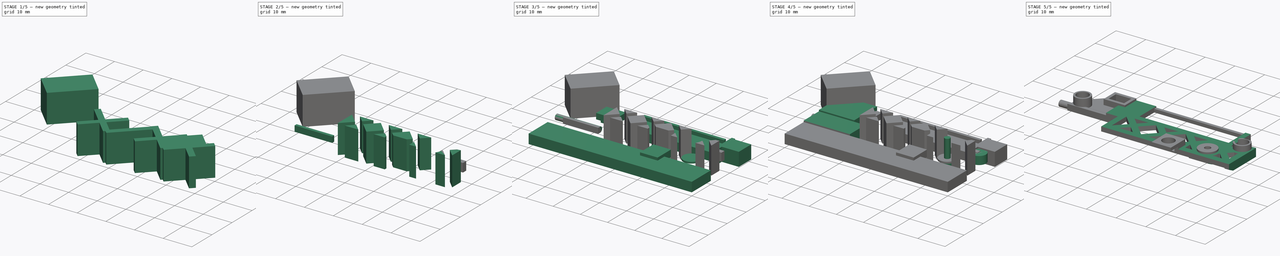
[diagram: build sequence overview — one tinted view per stage of 5, left to right]
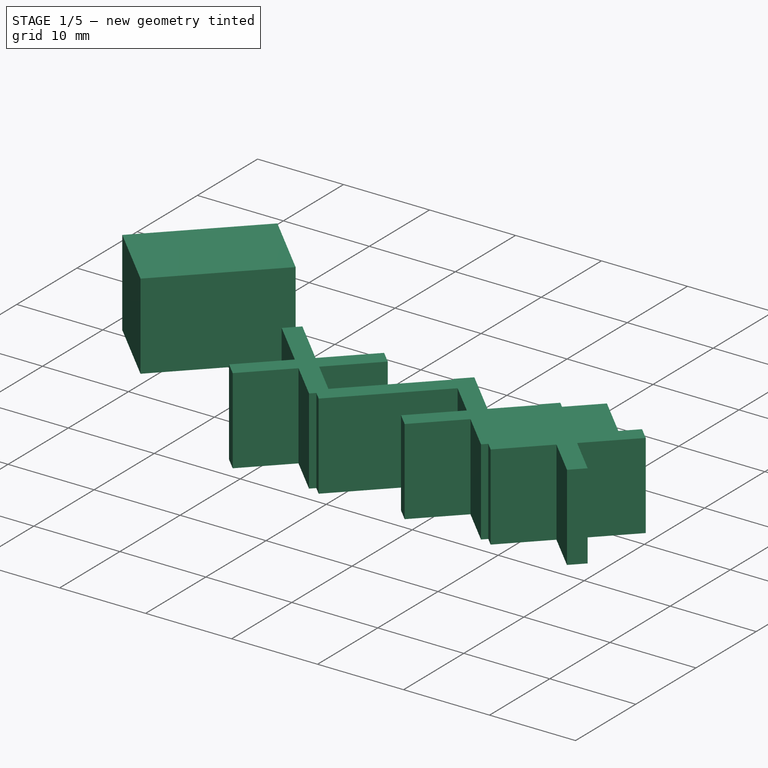
[diagram: stage 1 of 5 — iso view after this stage's code; geometry added in this stage tinted green]
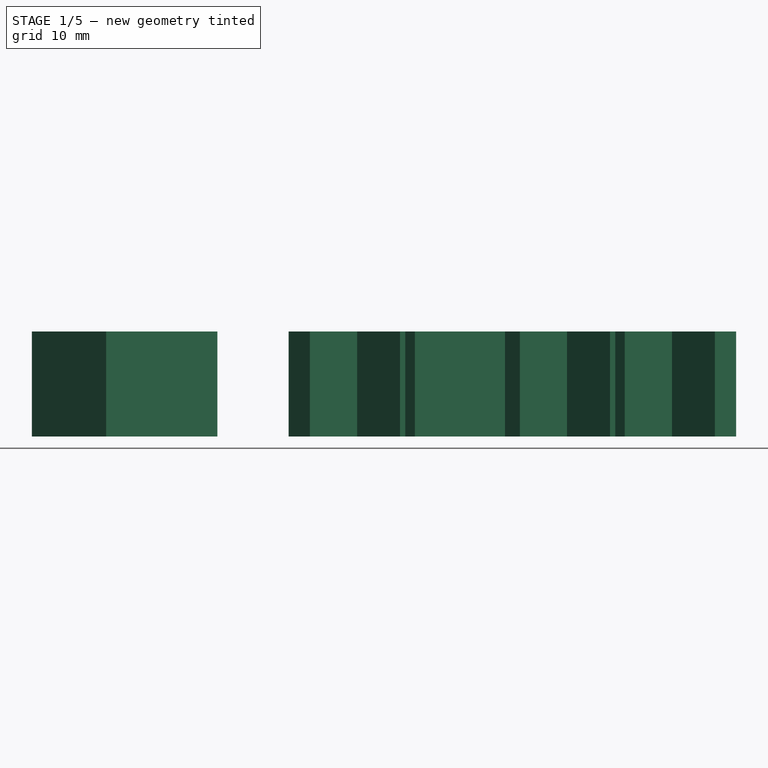
[diagram: stage 1 of 5 — front view after this stage's code; geometry added in this stage tinted green]
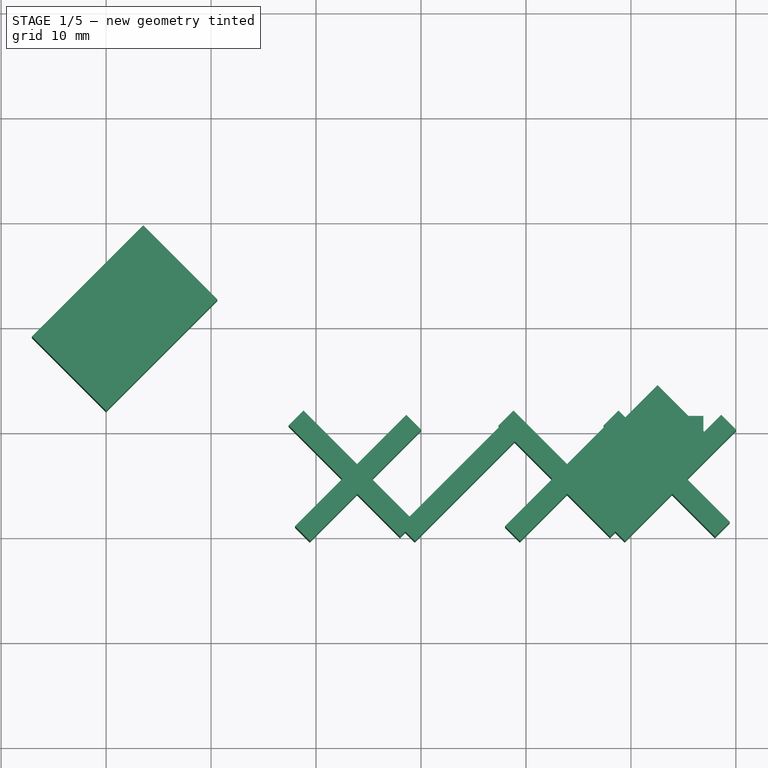
[diagram: stage 1 of 5 — top view after this stage's code; geometry added in this stage tinted green]
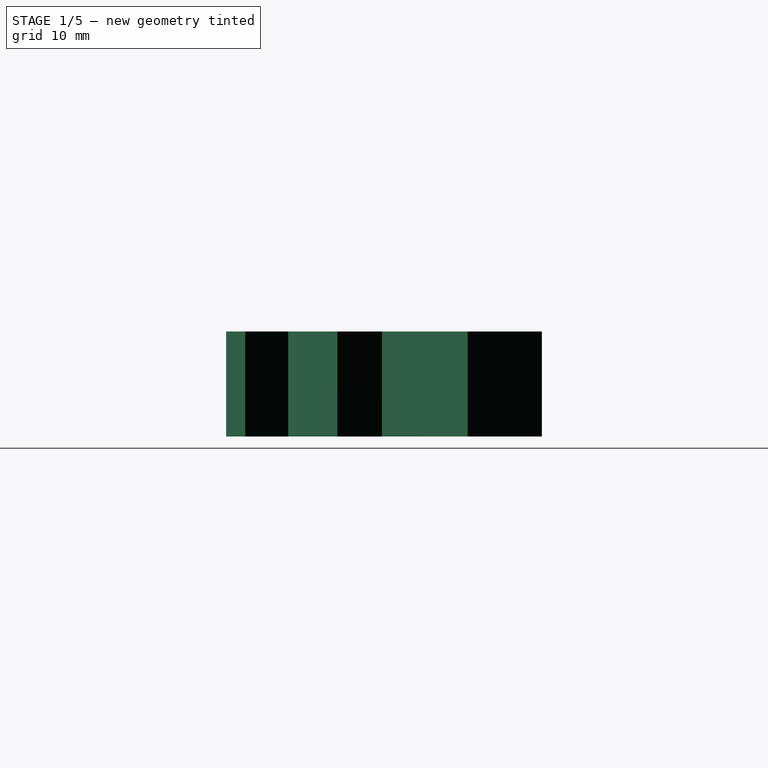
[diagram: stage 1 of 5 — right view after this stage's code; geometry added in this stage tinted green]
FCSTD DOCUMENT  (FreeCAD 0.17R13543 (Git))
Label: t25-t480-ports
License: All rights reserved
LicenseURL: http://en.wikipedia.org/wiki/All_rights_reserved
objects: Part::Box×29, Part::Cylinder×11, Part::MultiFuse×6, Part::Cut×4, Sketcher::SketchObject×1, PartDesign::Pad×1, PartDesign::Body×1
note: 54 computed .brp shape members not serialized (recipe doc carries the construction recipe); baked Part::Feature solids carry a one-line shape summary decoded from their .brp

FEATURE [Part::Box] Box017  label="Cube017"
  AttacherType = Attacher::AttachEngine3D
  Height = 10
  Length = 2
  Placement = pos=(28,0,0) rot=(0,0,1;0.785398rad)
  Width = 15
FEATURE [Part::Box] Box018  label="Cube018"
  AttacherType = Attacher::AttachEngine3D
  Height = 10
  Length = 2
  Placement = pos=(48,0,0) rot=(0,0,1;0.785398rad)
  Width = 15
FEATURE [Part::Box] Box019  label="Cube019"
  AttacherType = Attacher::AttachEngine3D
  Height = 10
  Length = 2
  Placement = pos=(38,1,0) rot=(0,0,-1;0.785398rad)
  Width = 15
FEATURE [Part::Box] Box020  label="Cube020"
  AttacherType = Attacher::AttachEngine3D
  Height = 10
  Length = 2
  Placement = pos=(28,1,0) rot=(0,0,-1;0.785398rad)
  Width = 15
FEATURE [Part::Box] Box021  label="Cube021"
  AttacherType = Attacher::AttachEngine3D
  Height = 10
  Length = 2
  Placement = pos=(18,1,0) rot=(0,0,-1;0.785398rad)
  Width = 15
FEATURE [Part::Box] Box024  label="Cube024"
  AttacherType = Attacher::AttachEngine3D
  Height = 10
  Length = 2
  Placement = pos=(48,1,0) rot=(0,0,-1;0.785398rad)
  Width = 15
FEATURE [Part::Box] Box025  label="Cube025"
  AttacherType = Attacher::AttachEngine3D
  Height = 10
  Length = 2
  Placement = pos=(58,0,0) rot=(0,0,1;0.785398rad)
  Width = 15
FEATURE [Part::Box] Box026  label="Cube026"
  AttacherType = Attacher::AttachEngine3D
  Height = 10
  Length = 12
  Placement = pos=(49,1,0) rot=(0,0,1;0.785398rad)
  Width = 7
FEATURE [Part::Box] Box027  label="Cube027"
  AttacherType = Attacher::AttachEngine3D
  Height = 10
  Length = 15
  Placement = pos=(0,12,0) rot=(0,0,1;0.785398rad)
  Width = 10
FEATURE [Part::Box] Box028  label="Cube028"
  AttacherType = Attacher::AttachEngine3D
  Height = 3
  Length = 3
  Placement = pos=(53.9,10,1.7) rot=(0,0,1;0rad)
  Width = 1.6
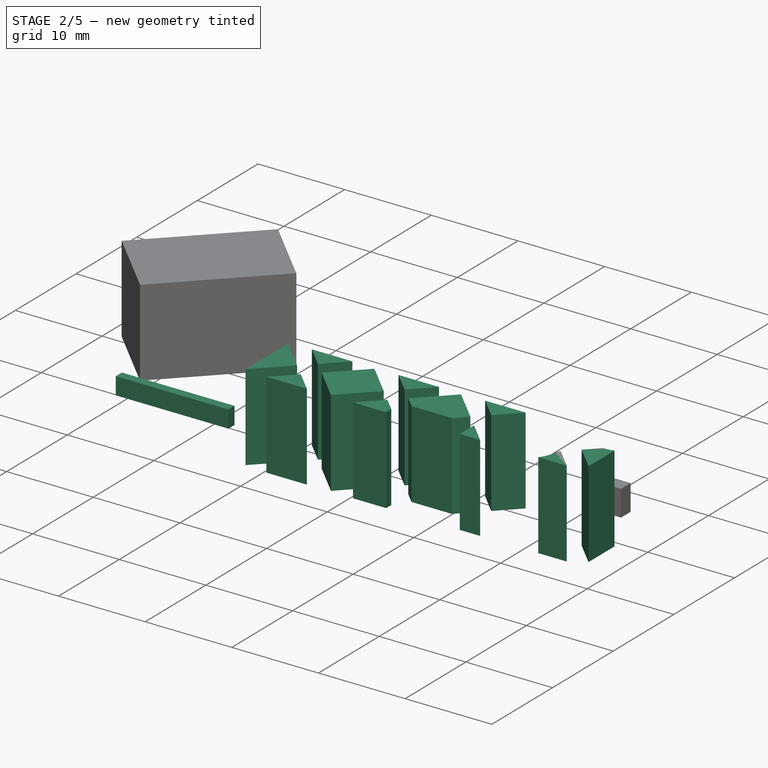
[diagram: stage 2 of 5 — iso view after this stage's code; geometry added in this stage tinted green]
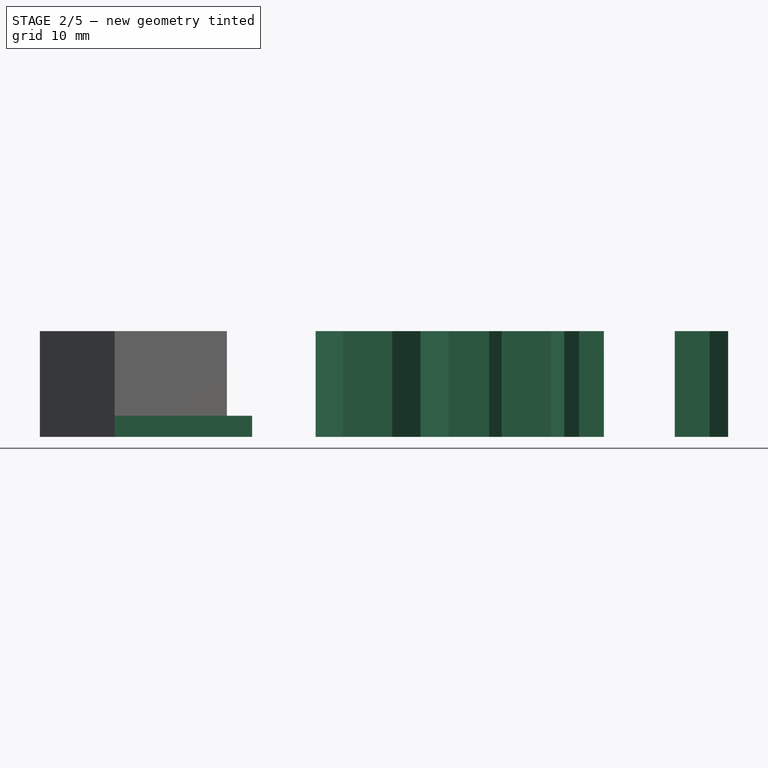
[diagram: stage 2 of 5 — front view after this stage's code; geometry added in this stage tinted green]
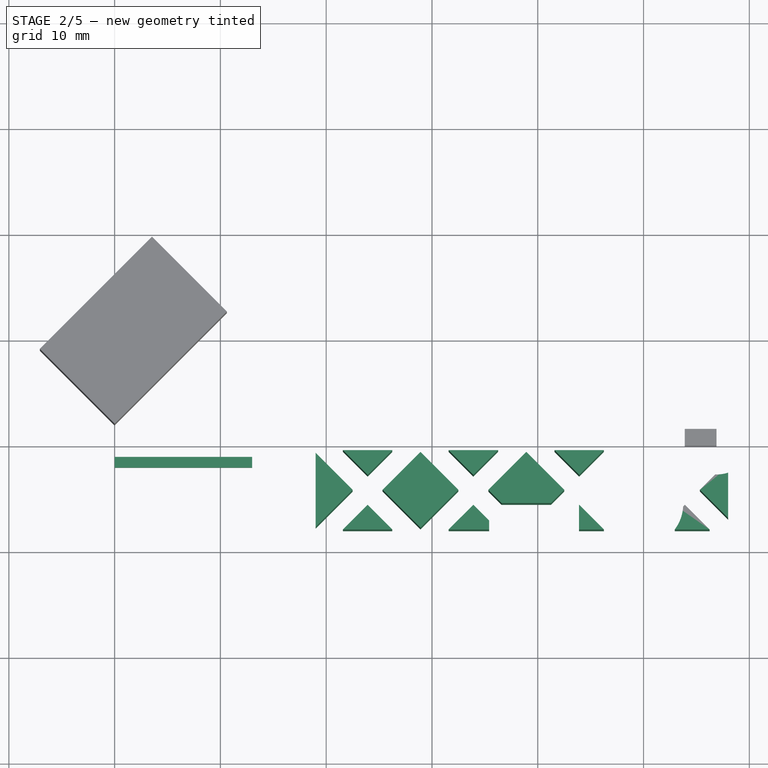
[diagram: stage 2 of 5 — top view after this stage's code; geometry added in this stage tinted green]
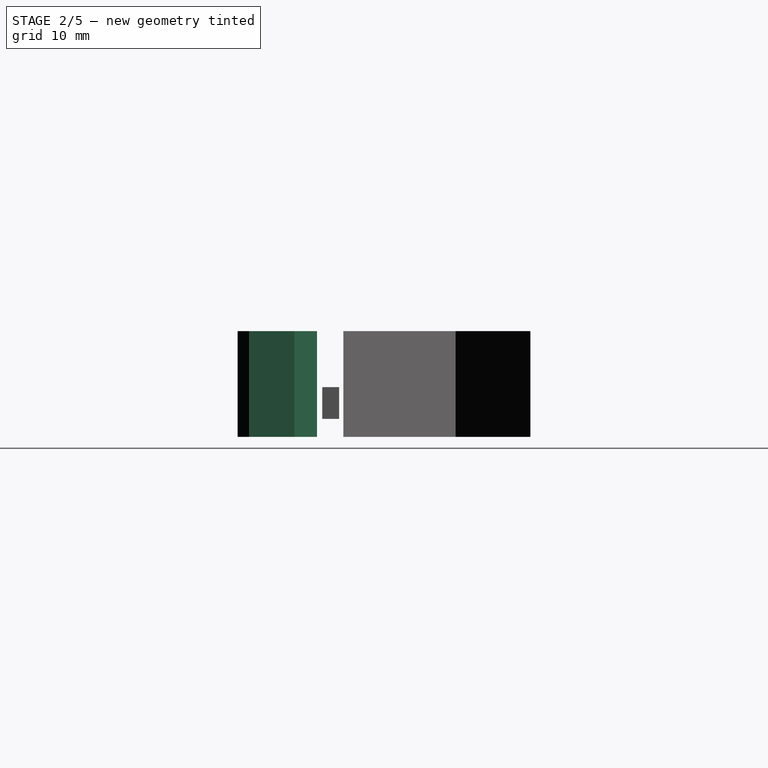
[diagram: stage 2 of 5 — right view after this stage's code; geometry added in this stage tinted green]
FEATURE [Part::Box] Box015  label="Cube015"
  AttacherType = Attacher::AttachEngine3D
  Height = 2
  Length = 13
  Placement = pos=(0,8,0) rot=(0,0,1;0rad)
  Width = 1
FEATURE [Part::Box] Box016  label="Cube016"
  AttacherType = Attacher::AttachEngine3D
  Height = 10
  Length = 2
  Placement = pos=(38,0,0) rot=(0,0,1;0.785398rad)
  Width = 15
FEATURE [Part::Box] Box022  label="Cube022"
  AttacherType = Attacher::AttachEngine3D
  Height = 10
  Length = 8.5
  Placement = pos=(35.4,-3.5,0) rot=(0,0,1;0rad)
  Width = 8
FEATURE [Part::Box] Box023  label="Cube023"
  AttacherType = Attacher::AttachEngine3D
  Height = 10
  Length = 39
  Placement = pos=(19,2,0) rot=(0,0,1;0rad)
  Width = 7.5
FEATURE [Part::Cylinder] Cylinder009
  Angle = 360
  AttacherType = Attacher::AttachEngine3D
  Height = 10
  Placement = pos=(56.9,10.8,0) rot=(0,0,1;0rad)
  Radius = 3.6
FEATURE [Part::Cylinder] Cylinder010
  Angle = 360
  AttacherType = Attacher::AttachEngine3D
  Height = 10
  Placement = pos=(49.75,4.4,0) rot=(0,0,1;0rad)
  Radius = 4
FEATURE [Part::MultiFuse] Fusion003
  Placement = pos=(0,0.25,0) rot=(0,0,1;0rad)
  Shapes = -> [Box016,Box021,Box019,Box017,Box018,Box020,Box024,Box025,Box026]
FEATURE [Part::MultiFuse] Fusion004
  Shapes = -> [Box022,Fusion003,Cylinder009,Cylinder010]
FEATURE [Part::Cut] Cut002
  Base = -> Box023
  Tool = -> Fusion004
FEATURE [Part::MultiFuse] Fusion005
  Shapes = -> [Box027,Cut002]
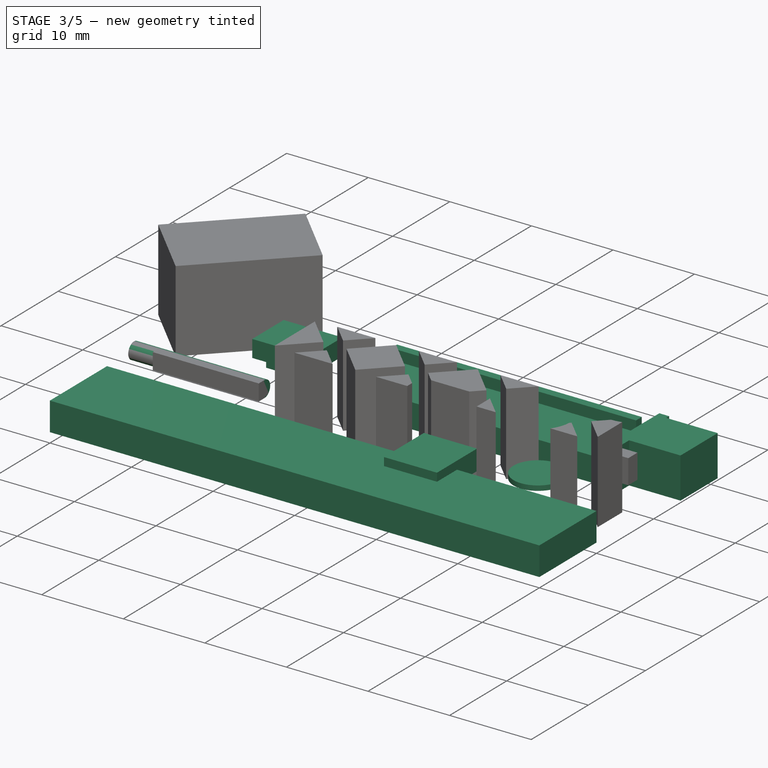
[diagram: stage 3 of 5 — iso view after this stage's code; geometry added in this stage tinted green]
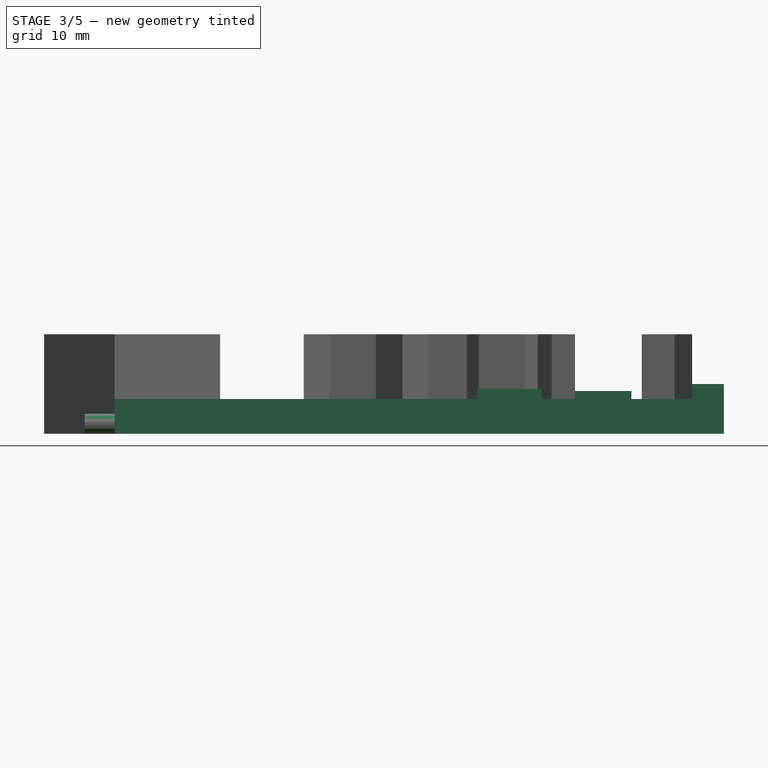
[diagram: stage 3 of 5 — front view after this stage's code; geometry added in this stage tinted green]
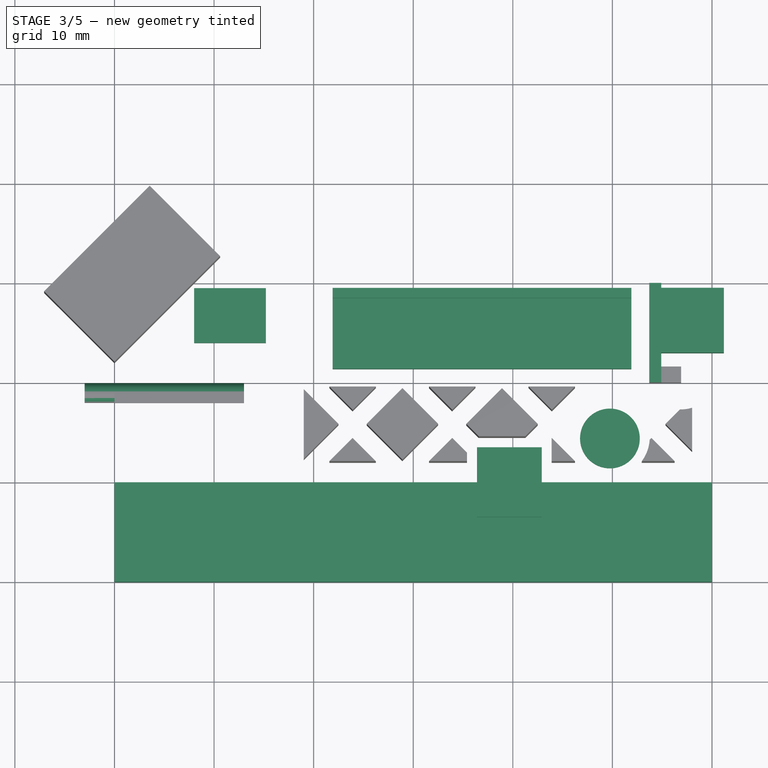
[diagram: stage 3 of 5 — top view after this stage's code; geometry added in this stage tinted green]
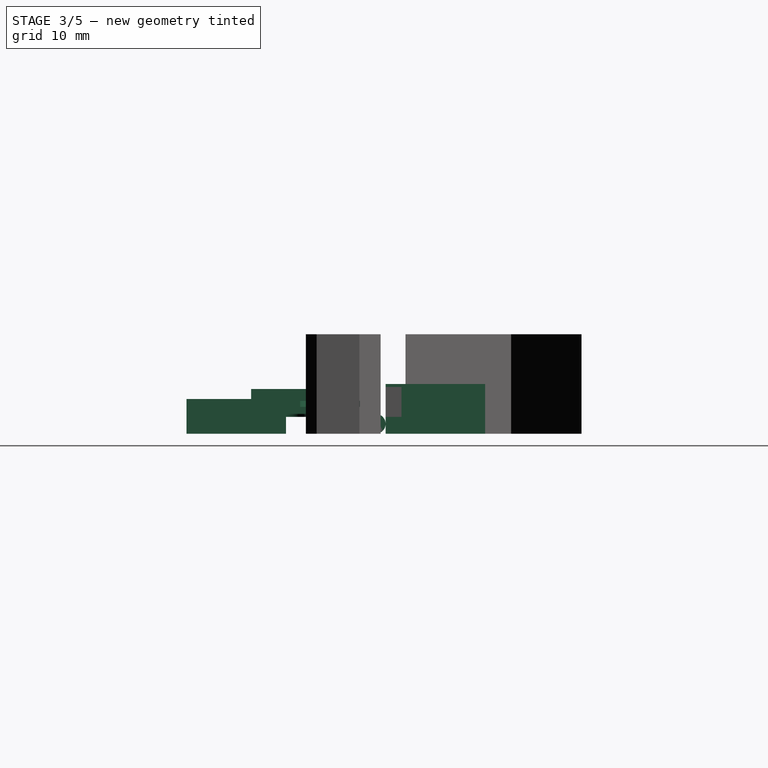
[diagram: stage 3 of 5 — right view after this stage's code; geometry added in this stage tinted green]
FEATURE [Part::Box] Box007  label="Cube007"
  AttacherType = Attacher::AttachEngine3D
  Height = 5
  Length = 1.2
  Placement = pos=(53.7,10,0) rot=(0,0,1;0rad)
  Width = 10
FEATURE [Part::Box] Box008  label="Cube008"
  AttacherType = Attacher::AttachEngine3D
  Height = 2.1
  Length = 7.2
  Placement = pos=(8,14,1.2) rot=(0,0,1;0rad)
  Width = 5.5
FEATURE [Part::Cylinder] Cylinder006
  Angle = 360
  AttacherType = Attacher::AttachEngine3D
  Height = 0.6
  Placement = pos=(49.75,4.4,2.7) rot=(0,0,1;0rad)
  Radius = 3
FEATURE [Part::Box] Box009  label="Cube009"
  AttacherType = Attacher::AttachEngine3D
  Height = 3.3
  Length = 5.2
  Placement = pos=(9,15,0) rot=(0,0,1;0rad)
  Width = 3.5
FEATURE [Part::Box] Box010  label="Cube010"
  AttacherType = Attacher::AttachEngine3D
  Height = 3
  Length = 30
  Placement = pos=(21.9,11.4,0) rot=(0,0,1;0rad)
  Width = 7.1
FEATURE [Part::Box] Box011  label="Cube011"
  AttacherType = Attacher::AttachEngine3D
  Height = 2
  Length = 30
  Placement = pos=(21.9,18.5,2.3) rot=(0,0,1;0rad)
  Width = 1
FEATURE [Part::Box] Box012  label="Cube012"
  AttacherType = Attacher::AttachEngine3D
  Height = 2.5
  Length = 6.5
  Placement = pos=(36.4,-3.5,2) rot=(0,0,1;0rad)
  Width = 7
FEATURE [Part::Box] Box013  label="Cube013"
  AttacherType = Attacher::AttachEngine3D
  Height = 3.5
  Length = 60
  Placement = pos=(0,-10,0) rot=(0,0,1;0rad)
  Width = 10
FEATURE [Part::Cylinder] Cylinder007
  Angle = 360
  AttacherType = Attacher::AttachEngine3D
  Height = 2.8
  Placement = pos=(39.65,0,1.7) rot=(0,0,1;0rad)
  Radius = 2
FEATURE [Part::Box] Box014  label="Cube014"
  AttacherType = Attacher::AttachEngine3D
  Height = 5
  Length = 7.2
  Placement = pos=(54,13,0) rot=(0,0,1;0rad)
  Width = 6.5
FEATURE [Part::Cylinder] Cylinder008
  Angle = 360
  AttacherType = Attacher::AttachEngine3D
  Height = 16
  Placement = pos=(-3,9,1) rot=(0,1,0;1.5708rad)
  Radius = 1
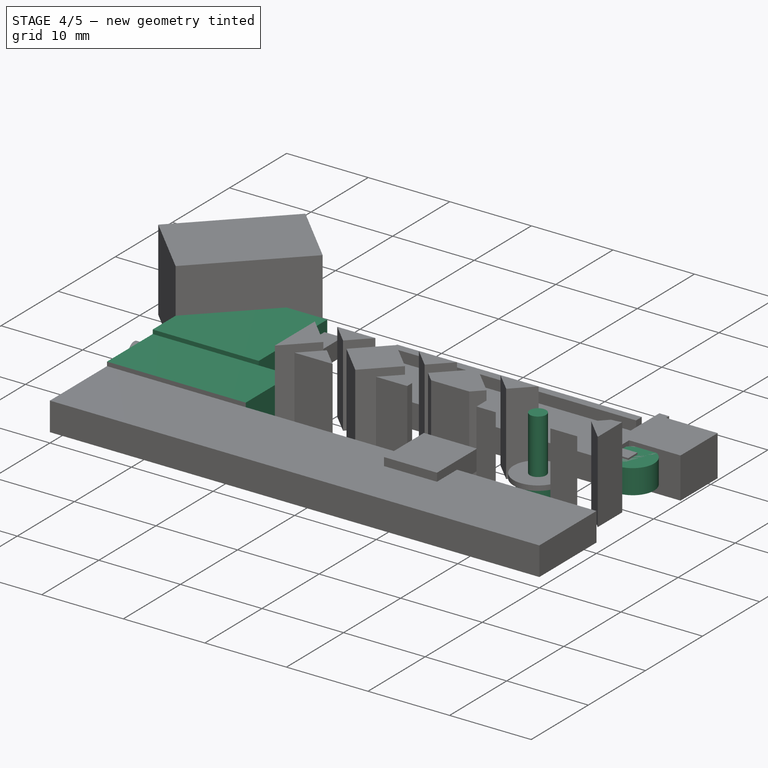
[diagram: stage 4 of 5 — iso view after this stage's code; geometry added in this stage tinted green]
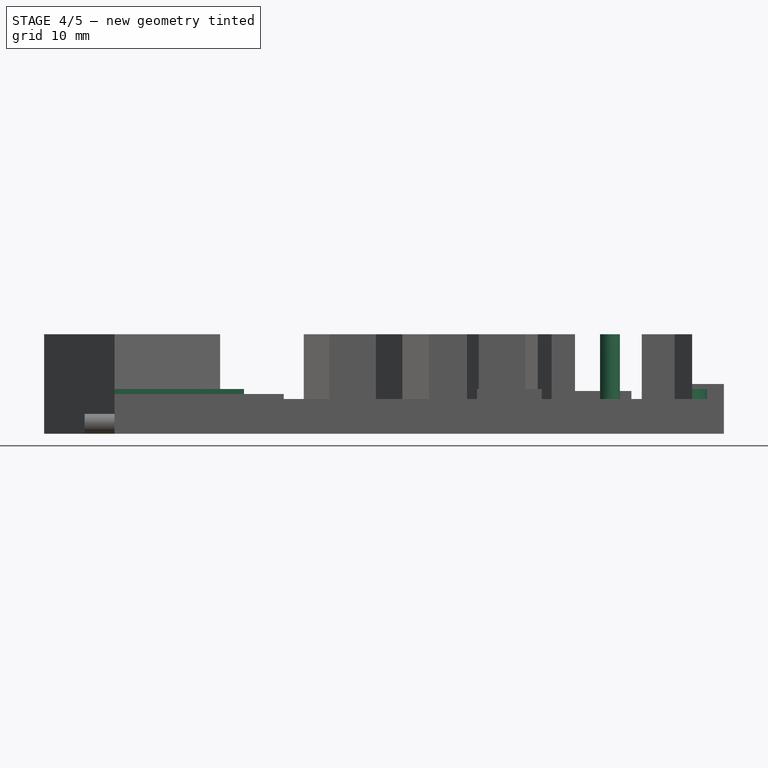
[diagram: stage 4 of 5 — front view after this stage's code; geometry added in this stage tinted green]
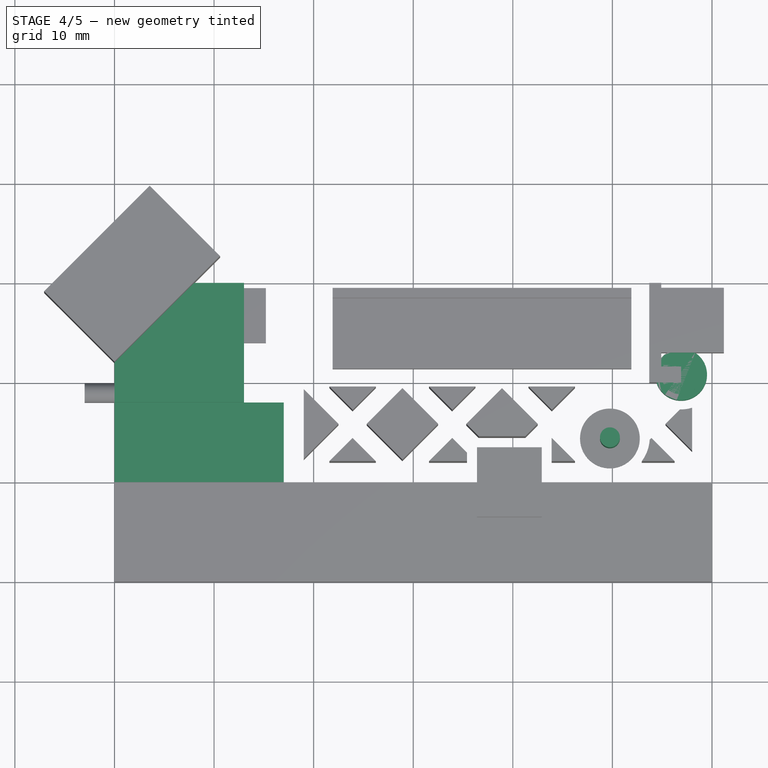
[diagram: stage 4 of 5 — top view after this stage's code; geometry added in this stage tinted green]
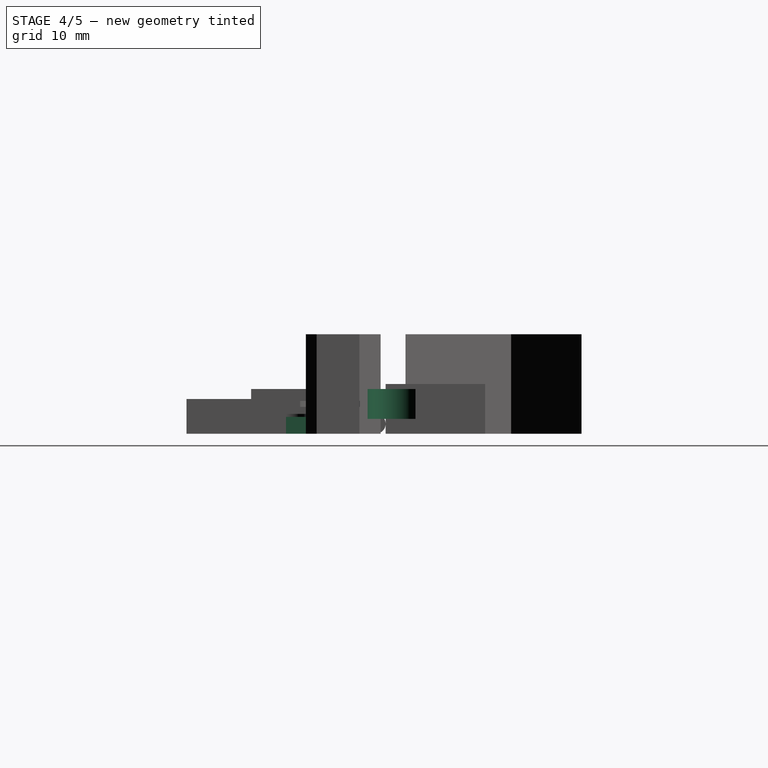
[diagram: stage 4 of 5 — right view after this stage's code; geometry added in this stage tinted green]
FEATURE [Part::Box] Box004  label="Cube004"
  AttacherType = Attacher::AttachEngine3D
  Height = 4
  Length = 17
  Width = 8
FEATURE [Part::Cylinder] Cylinder
  Angle = 360
  AttacherType = Attacher::AttachEngine3D
  Height = 2.7
  Placement = pos=(49.75,4.4,0) rot=(0,0,1;0rad)
  Radius = 2.25
FEATURE [Part::Cylinder] Cylinder001
  Angle = 360
  AttacherType = Attacher::AttachEngine3D
  Height = 10
  Placement = pos=(49.75,4.4,0) rot=(0,0,1;0rad)
  Radius = 1
FEATURE [Part::Box] Box005  label="Cube005"
  AttacherType = Attacher::AttachEngine3D
  Height = 4
  Length = 1.2
  Placement = pos=(53.7,10,0) rot=(0,0,1;0rad)
  Width = 10
FEATURE [Part::Box] Box006  label="Cube006"
  AttacherType = Attacher::AttachEngine3D
  Height = 3
  Length = 13
  Placement = pos=(0,8,1.5) rot=(0,0,1;0rad)
  Width = 12
FEATURE [Part::Cylinder] Cylinder002
  Angle = 360
  AttacherType = Attacher::AttachEngine3D
  Height = 3
  Placement = pos=(3.2,10.8,1.5) rot=(0,0,1;0rad)
  Radius = 2.6
FEATURE [Part::Cylinder] Cylinder003
  Angle = 360
  AttacherType = Attacher::AttachEngine3D
  Height = 3
  Placement = pos=(56.9,10.8,1.5) rot=(0,0,1;0rad)
  Radius = 2.6
FEATURE [Part::Cylinder] Cylinder004
  Angle = 360
  AttacherType = Attacher::AttachEngine3D
  Height = 2.8
  Placement = pos=(3.2,10.8,1.7) rot=(0,0,1;0rad)
  Radius = 2
FEATURE [Part::Cylinder] Cylinder005
  Angle = 360
  AttacherType = Attacher::AttachEngine3D
  Height = 2.8
  Placement = pos=(56.9,10.8,1.7) rot=(0,0,1;0rad)
  Radius = 2
FEATURE [Part::MultiFuse] Fusion002
  Shapes = -> [Cylinder005,Cylinder004,Box007,Cylinder001,Cylinder,Box009,Box010,Box011,Box013,Cylinder007,Box014,Box028]
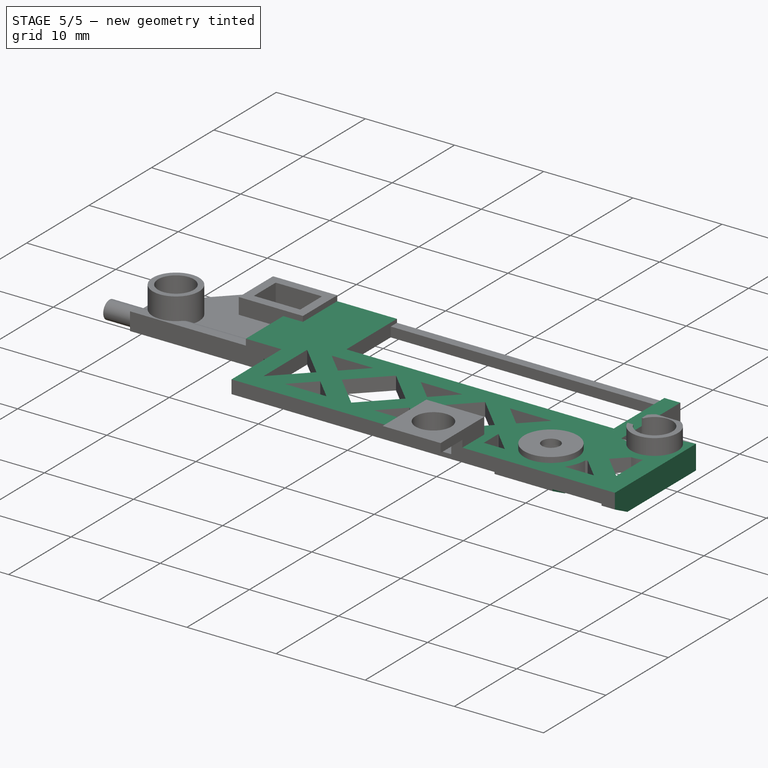
[diagram: stage 5 of 5 — iso view after this stage's code; geometry added in this stage tinted green]
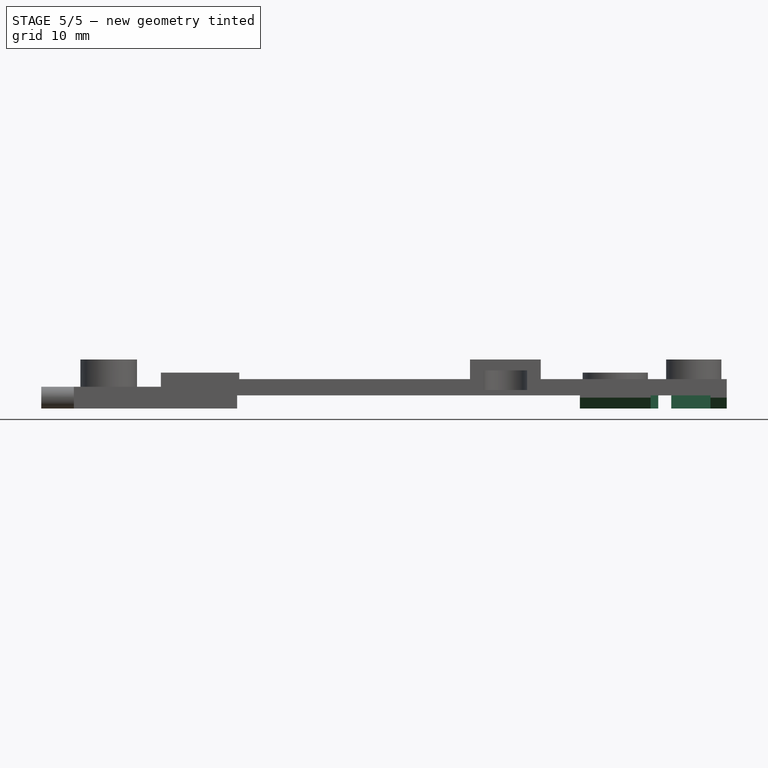
[diagram: stage 5 of 5 — front view after this stage's code; geometry added in this stage tinted green]
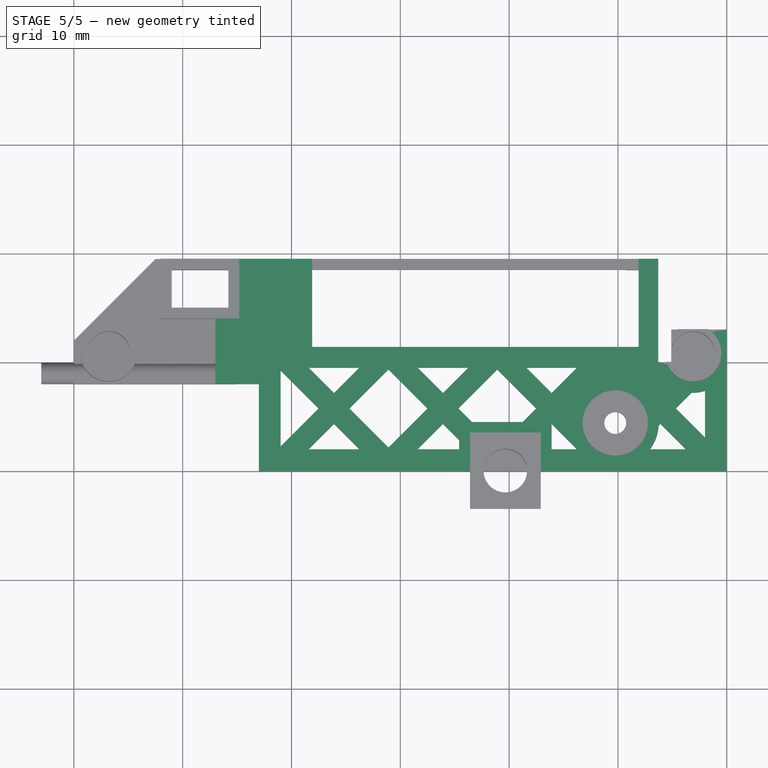
[diagram: stage 5 of 5 — top view after this stage's code; geometry added in this stage tinted green]
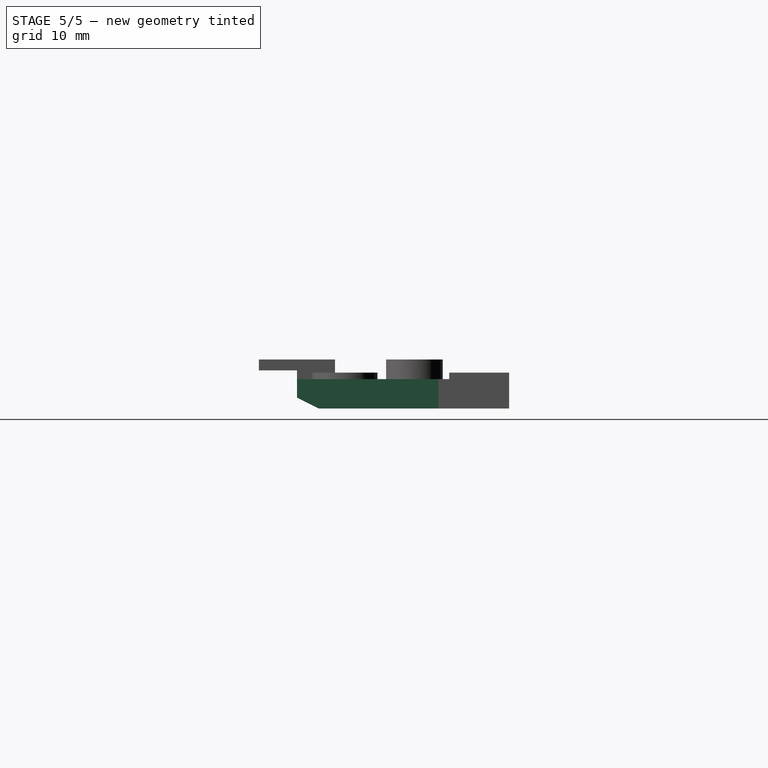
[diagram: stage 5 of 5 — right view after this stage's code; geometry added in this stage tinted green]
FEATURE [Part::Box] Box  label="Cube"
  AttacherType = Attacher::AttachEngine3D
  Height = 2.7
  Length = 60
  Width = 19.5
FEATURE [Sketcher::SketchObject] Sketch
  MapMode = 5
  Placement = pos=(0,0,0) rot=(0.57735,0.57735,0.57735;2.0944rad)
  Support = -> [YZ_Plane]
  sketch-geometry (3):
    g0: LineSegment StartX=0 StartY=0 StartZ=0 EndX=2 EndY=0 EndZ=0
    g1: LineSegment StartX=2 StartY=0 StartZ=0 EndX=0 EndY=1 EndZ=0
    g2: LineSegment StartX=0 StartY=1 StartZ=0 EndX=0 EndY=0 EndZ=0
  constraints (8):
    c: Coincident(g-1,g0)
    c: Horizontal(g0)
    c: Coincident(g0,g1)
    c: PointOnObject(g1,g-2)
    c: Coincident(g1,g2)
    c: Coincident(g2,g0)
    c: Distance(g-1,g1) = 1
    c: Distance(g-1,g0) = 2
FEATURE [PartDesign::Pad] Pad
  Length = 100
  Length2 = 100
  Placement = pos=(0,0,0) rot=(0.57735,0.57735,0.57735;2.0944rad)
  Profile = -> Sketch
  Type = 0
FEATURE [PartDesign::Body] Body
  Group = -> [Sketch,Pad]
  Origin = -> Origin
  Tip = -> Pad
FEATURE [Part::Box] Box001  label="Cube001"
  AttacherType = Attacher::AttachEngine3D
  Height = 1.2
  Length = 31.5
  Placement = pos=(15,0,0) rot=(0,0,1;0rad)
  Width = 20
FEATURE [Part::Box] Box002  label="Cube002"
  AttacherType = Attacher::AttachEngine3D
  Height = 1.2
  Length = 5.5
  Placement = pos=(53,0,0) rot=(0,0,1;0rad)
  Width = 10
FEATURE [Part::Box] Box003  label="Cube003"
  AttacherType = Attacher::AttachEngine3D
  Height = 1.2
  Length = 4.7
  Placement = pos=(46,10,0) rot=(0,0,1;0rad)
  Width = 10
FEATURE [Part::MultiFuse] Fusion
  Shapes = -> [Body,Box004,Box001,Box003,Box002,Box005,Box006]
FEATURE [Part::Cut] Cut
  Base = -> Box
  Tool = -> Fusion
FEATURE [Part::MultiFuse] Fusion001
  Shapes = -> [Cut,Cylinder002,Cylinder003,Box008,Cylinder006,Box012,Cylinder008,Box015]
FEATURE [Part::Cut] Cut001
  Base = -> Fusion001
  Tool = -> Fusion002
FEATURE [Part::Cut] Cut003
  Base = -> Cut001
  Tool = -> Fusion005
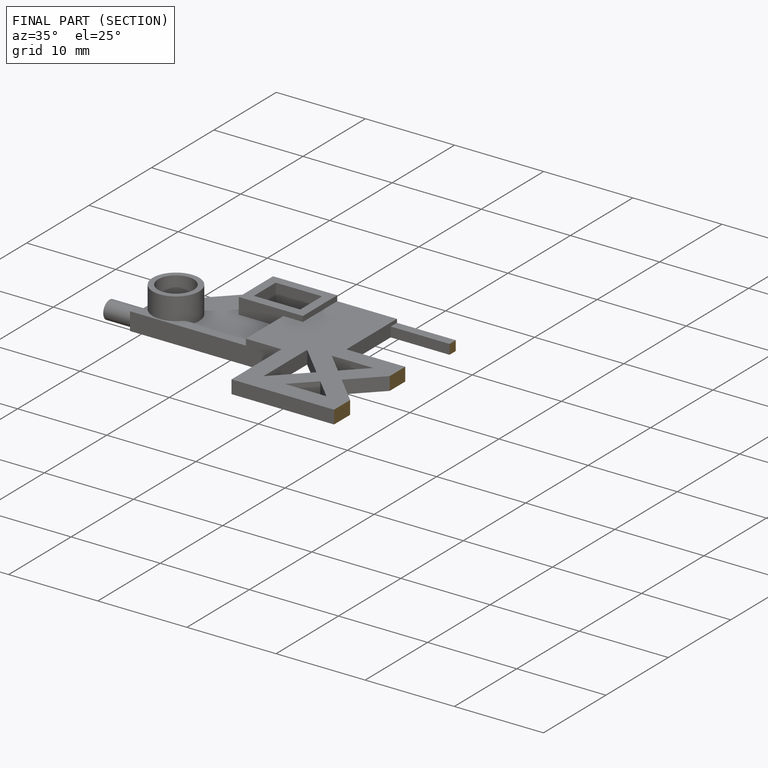
[diagram: finished part — half-section view (interior)]
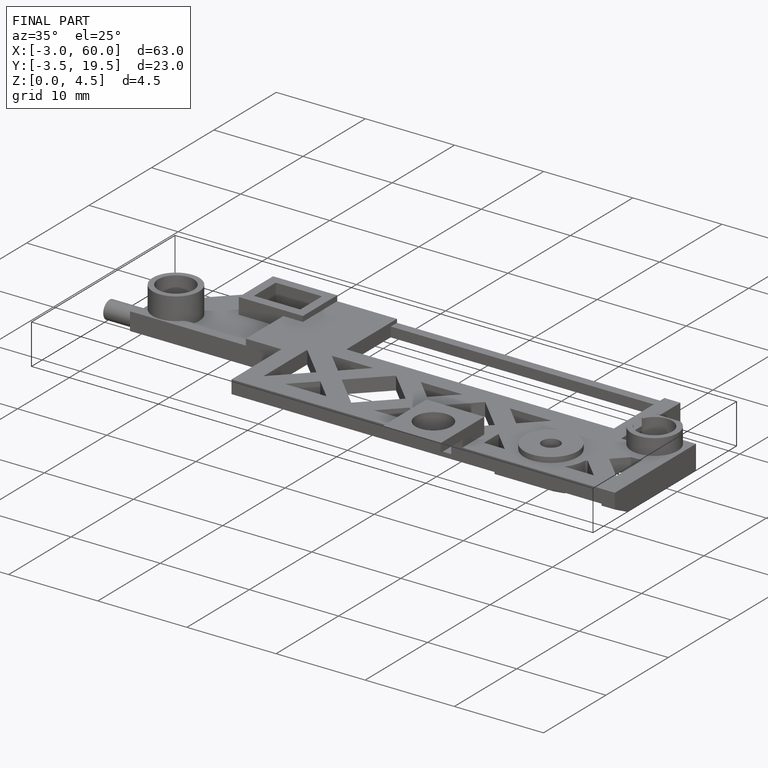
[diagram: finished part — iso view with bounding-box wireframe]
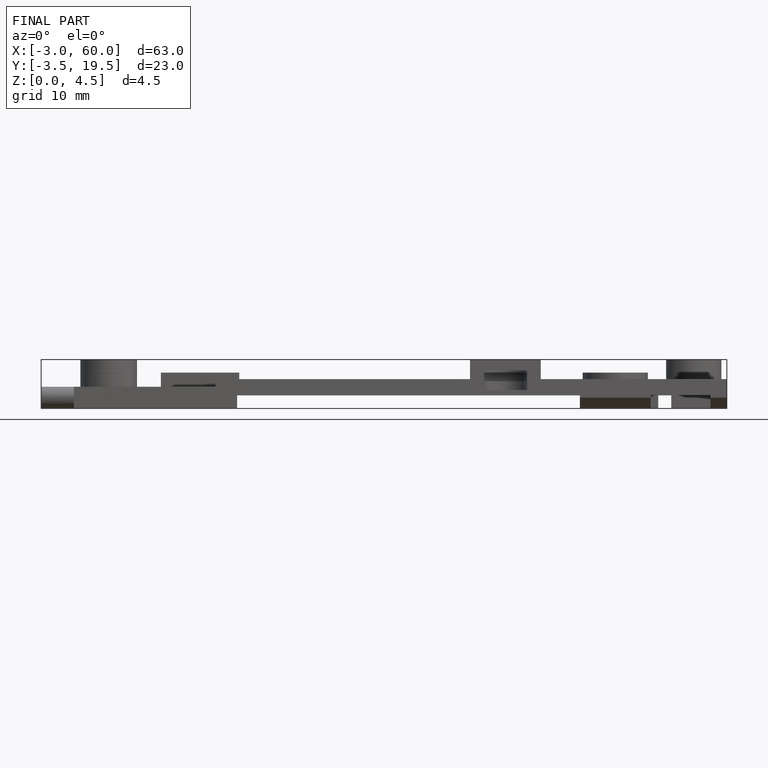
[diagram: finished part — front view with bounding-box wireframe]
